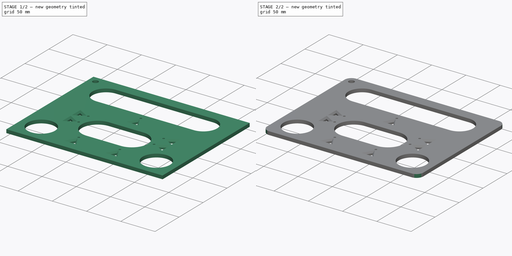
[diagram: build sequence overview — one tinted view per stage of 2, left to right]
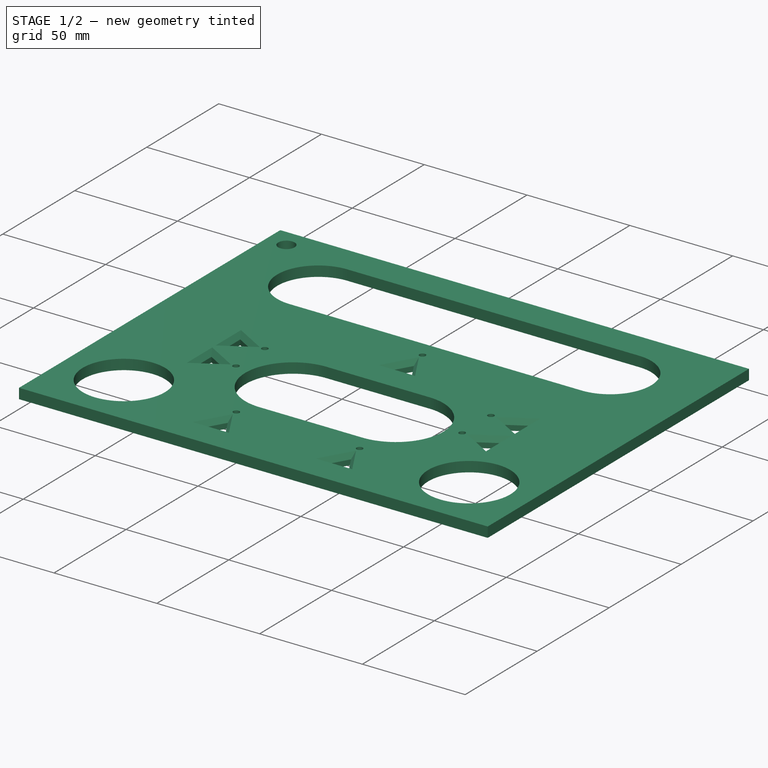
[diagram: stage 1 of 2 — iso view after this stage's code; geometry added in this stage tinted green]
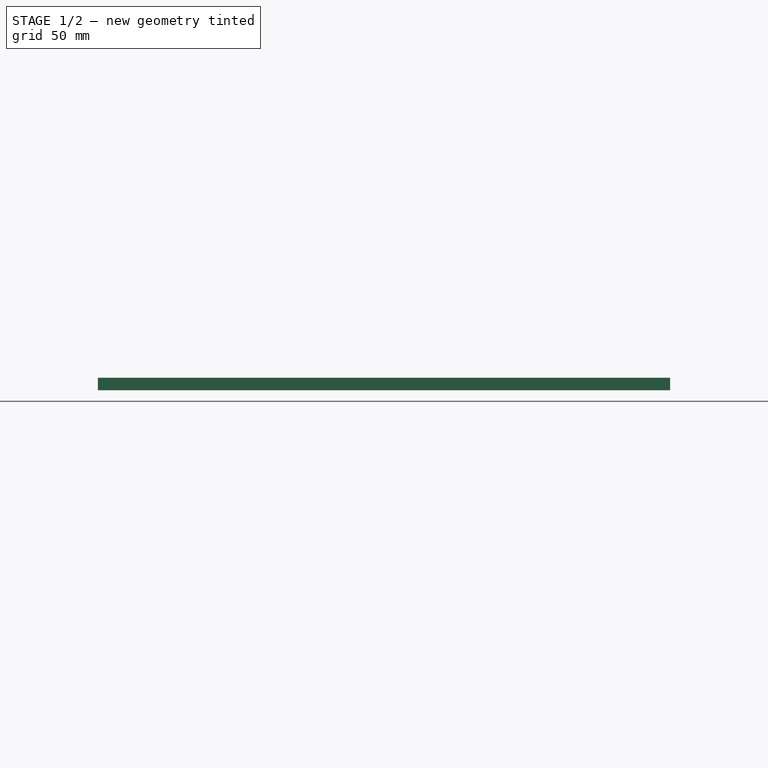
[diagram: stage 1 of 2 — front view after this stage's code; geometry added in this stage tinted green]
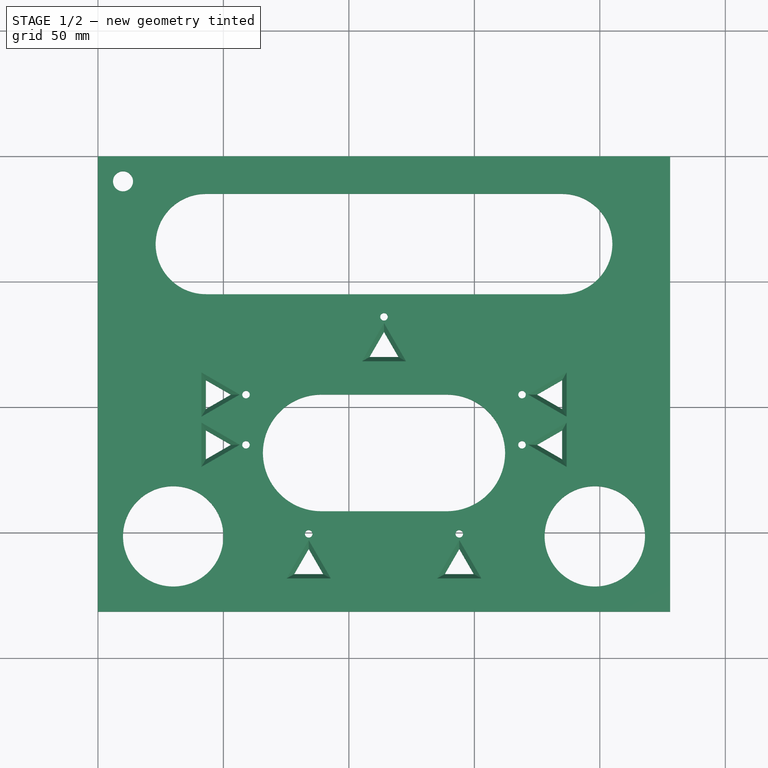
[diagram: stage 1 of 2 — top view after this stage's code; geometry added in this stage tinted green]
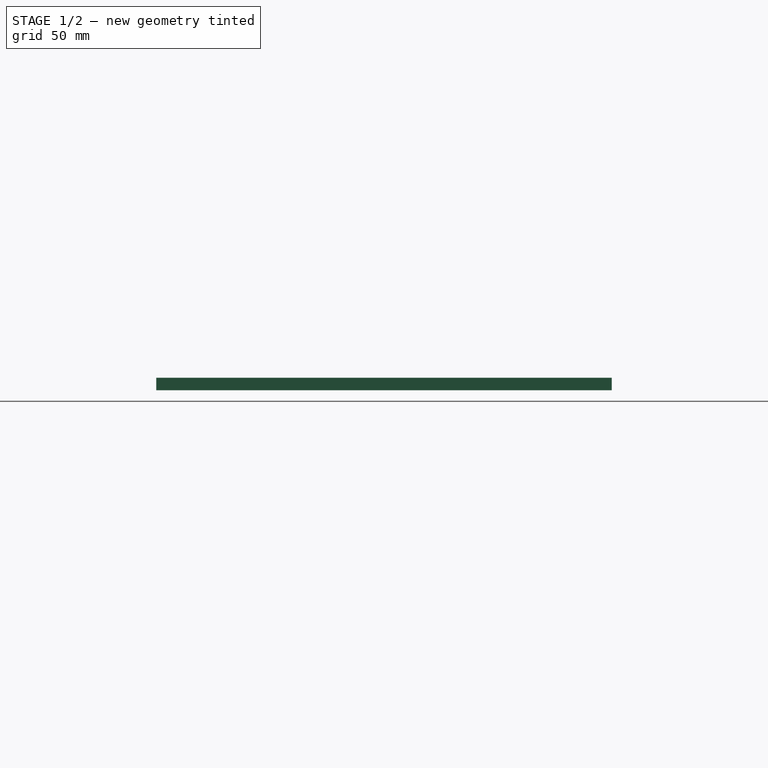
[diagram: stage 1 of 2 — right view after this stage's code; geometry added in this stage tinted green]
FCSTD DOCUMENT  (FreeCAD 0.19R24366 (Git))
Label: Small enclosure, bracket over radio and PSU
License: All rights reserved
LicenseURL: http://en.wikipedia.org/wiki/All_rights_reserved
objects: Sketcher::SketchObject×1, PartDesign::Pad×1, Part::Part2DObjectPython×1, PartDesign::Chamfer×1, PartDesign::Fillet×1, PartDesign::Body×1, TechDraw::DrawSVGTemplate×1, TechDraw::DrawViewPart×1, TechDraw::DrawPage×1
note: 9 computed .brp shape members not serialized (recipe doc carries the construction recipe); baked Part::Feature solids carry a one-line shape summary decoded from their .brp

FEATURE [Sketcher::SketchObject] Sketch
  FullyConstrained = true
  MapMode = 5
  Support = -> [XY_Plane]
  sketch-geometry (46):
    g0: LineSegment StartX=0 StartY=0 StartZ=0 EndX=228 EndY=0 EndZ=0
    g1: LineSegment StartX=228 StartY=0 StartZ=0 EndX=228 EndY=-181.5 EndZ=0
    g2: LineSegment StartX=149.774 StartY=-166.5 StartZ=0 EndX=144 EndY=-156.5 EndZ=0
    g3: LineSegment StartX=144 StartY=-156.5 StartZ=0 EndX=138.226 EndY=-166.5 EndZ=0
    g4: LineSegment StartX=89.7735 StartY=-166.5 StartZ=0 EndX=84 EndY=-156.5 EndZ=0
    g5: LineSegment StartX=84 StartY=-156.5 StartZ=0 EndX=78.2265 EndY=-166.5 EndZ=0
    g6: LineSegment StartX=0 StartY=-181.5 StartZ=0 EndX=0 EndY=0 EndZ=0
    g7: LineSegment StartX=114 StartY=-70 StartZ=0 EndX=119.774 EndY=-80 EndZ=0
    g8: LineSegment StartX=119.774 StartY=-80 StartZ=0 EndX=108.226 EndY=-80 EndZ=0
    g9: LineSegment StartX=108.226 StartY=-80 StartZ=0 EndX=114 EndY=-70 EndZ=0
    g10: LineSegment StartX=114 StartY=-70 StartZ=0 EndX=114 EndY=-166.5 EndZ=0
    g11: LineSegment StartX=78.2265 StartY=-166.5 StartZ=0 EndX=89.7735 EndY=-166.5 EndZ=0
    g12: LineSegment StartX=138.226 StartY=-166.5 StartZ=0 EndX=149.774 EndY=-166.5 EndZ=0
    g13: LineSegment StartX=0 StartY=-181.5 StartZ=0 EndX=228 EndY=-181.5 EndZ=0
    g14: LineSegment StartX=53 StartY=-105 StartZ=0 EndX=175 EndY=-105 EndZ=0
    g15: GeomPoint X=114 Y=-105 Z=0
    g16: LineSegment StartX=185 StartY=-89.2265 StartZ=0 EndX=175 EndY=-95 EndZ=0
    g17: LineSegment StartX=175 StartY=-95 StartZ=0 EndX=185 EndY=-100.774 EndZ=0
    g18: LineSegment StartX=185 StartY=-100.774 StartZ=0 EndX=185 EndY=-89.2265 EndZ=0
    g19: LineSegment StartX=185 StartY=-109.226 StartZ=0 EndX=175 EndY=-115 EndZ=0
    g20: LineSegment StartX=175 StartY=-115 StartZ=0 EndX=185 EndY=-120.774 EndZ=0
    g21: LineSegment StartX=185 StartY=-120.774 StartZ=0 EndX=185 EndY=-109.226 EndZ=0
    g22: LineSegment StartX=43 StartY=-100.774 StartZ=0 EndX=53 EndY=-95 EndZ=0
    g23: LineSegment StartX=53 StartY=-95 StartZ=0 EndX=43 EndY=-89.2265 EndZ=0
    g24: LineSegment StartX=43 StartY=-89.2265 StartZ=0 EndX=43 EndY=-100.774 EndZ=0
    g25: LineSegment StartX=43 StartY=-120.774 StartZ=0 EndX=53 EndY=-115 EndZ=0
    g26: LineSegment StartX=53 StartY=-115 StartZ=0 EndX=43 EndY=-109.226 EndZ=0
    g27: LineSegment StartX=43 StartY=-109.226 StartZ=0 EndX=43 EndY=-120.774 EndZ=0
    g28: ArcOfCircle CenterX=43 CenterY=-35 CenterZ=0 NormalX=0 NormalY=0 NormalZ=1 AngleXU=0 Radius=20 StartAngle=1.5708 EndAngle=4.71239
    g29: ArcOfCircle CenterX=185 CenterY=-35 CenterZ=0 NormalX=0 NormalY=0 NormalZ=1 AngleXU=0 Radius=20 StartAngle=4.71239 EndAngle=7.85398
    g30: LineSegment StartX=43 StartY=-55 StartZ=0 EndX=185 EndY=-55 EndZ=0
    g31: LineSegment StartX=43 StartY=-15 StartZ=0 EndX=185 EndY=-15 EndZ=0
    g32: ArcOfCircle CenterX=89 CenterY=-118.25 CenterZ=0 NormalX=0 NormalY=0 NormalZ=1 AngleXU=0 Radius=23.25 StartAngle=1.5708 EndAngle=4.71239
    g33: ArcOfCircle CenterX=139 CenterY=-118.25 CenterZ=0 NormalX=0 NormalY=0 NormalZ=1 AngleXU=0 Radius=23.25 StartAngle=4.71239 EndAngle=7.85398
    g34: LineSegment StartX=89 StartY=-141.5 StartZ=0 EndX=139 EndY=-141.5 EndZ=0
    g35: LineSegment StartX=89 StartY=-95 StartZ=0 EndX=139 EndY=-95 EndZ=0
    g36: Circle CenterX=59 CenterY=-95 CenterZ=0 NormalX=0 NormalY=0 NormalZ=1 AngleXU=0 Radius=1.5
    g37: Circle CenterX=59 CenterY=-115 CenterZ=0 NormalX=0 NormalY=0 NormalZ=1 AngleXU=0 Radius=1.5
    g38: Circle CenterX=169 CenterY=-95 CenterZ=0 NormalX=0 NormalY=0 NormalZ=1 AngleXU=0 Radius=1.5
    g39: Circle CenterX=169 CenterY=-115 CenterZ=0 NormalX=0 NormalY=0 NormalZ=1 AngleXU=0 Radius=1.5
    g40: Circle CenterX=84 CenterY=-150.5 CenterZ=0 NormalX=0 NormalY=0 NormalZ=1 AngleXU=0 Radius=1.5
    g41: Circle CenterX=144 CenterY=-150.5 CenterZ=0 NormalX=0 NormalY=0 NormalZ=1 AngleXU=0 Radius=1.5
    g42: Circle CenterX=114 CenterY=-64 CenterZ=0 NormalX=0 NormalY=0 NormalZ=1 AngleXU=0 Radius=1.5
    g43: Circle CenterX=10 CenterY=-10 CenterZ=0 NormalX=0 NormalY=0 NormalZ=1 AngleXU=0 Radius=4
    g44: Circle CenterX=30 CenterY=-151.5 CenterZ=0 NormalX=0 NormalY=0 NormalZ=1 AngleXU=0 Radius=20
    g45: Circle CenterX=198 CenterY=-151.5 CenterZ=0 NormalX=0 NormalY=0 NormalZ=1 AngleXU=0 Radius=20
  constraints (131):
    c: PointOnObject(g0,g-1)
    c: Coincident(g0,g1)
    c: Vertical(g1)
    c: Coincident(g2,g3)
    c: Coincident(g4,g5)
    c: PointOnObject(g6,g-2)
    c: Horizontal(g5,g4)
    c: Horizontal(g4,g2)
    c: Horizontal(g4,g2)
    c: DistanceX(g4,g2) = 60
    c: Angle(g5,g4) = 1.0472
    c: Angle(g3,g2) = 1.0472
    c: Equal(g5,g4)
    c: Equal(g4,g3)
    c: Coincident(g7,g8)
    c: Horizontal(g8)
    c: Coincident(g8,g9)
    c: Coincident(g9,g7)
    c: Angle(g9,g7) = 1.0472
    c: DistanceY(g2,g7) = 86.5
    c: Coincident(g10,g7)
    c: Vertical(g10)
    c: Symmetric(g3,g4,g10)
    c: Equal(g9,g7)
    c: DistanceX(g0,g7) = 114
    c: Coincident(g0,g6)
    c: Coincident(g0,g-1)
    c: DistanceY(g7,g0) = 70
    c: Coincident(g11,g5)
    c: Coincident(g11,g4)
    c: Coincident(g12,g3)
    c: Coincident(g12,g2)
    c: Horizontal(g12)
    c: DistanceY(g2,g2) = 10
    c: Coincident(g13,g6)
    c: Coincident(g13,g1)
    c: Horizontal(g13)
    c: Horizontal(g14)
    c: PointOnObject(g15,g10)
    c: DistanceY(g15,g7) = 35
    c: Symmetric(g14,g14,g15)
    c: Distance(g14) = 122
    c: Coincident(g16,g17)
    c: Angle(g17,g16) = 1.0472
    c: Coincident(g18,g17)
    c: Coincident(g18,g16)
    c: Equal(g2,g16) = 15
    c: Equal(g17,g16)
    c: Vertical(g16,g14)
    c: DistanceY(g14,g16) = 10
    c: Vertical(g18)
    c: Coincident(g19,g20)
    c: Angle(g20,g19) = 1.0472
    c: Coincident(g21,g20)
    c: Coincident(g21,g19)
    c: Equal(g20,g19)
    c: Vertical(g21)
    c: Vertical(g16,g19)
    c: DistanceY(g19,g16) = 20
    c: Vertical(g17,g19)
    c: Coincident(g22,g23)
    c: Angle(g23,g22) = 1.0472
    c: Equal(g23,g22)
    c: Coincident(g24,g23)
    c: Coincident(g24,g22)
    c: Vertical(g24)
    c: Vertical(g22,g14)
    c: Horizontal(g16,g22)
    c: Coincident(g25,g26)
    c: Angle(g26,g25) = 1.0472
    c: Equal(g26,g25)
    c: Coincident(g27,g26)
    c: Coincident(g27,g25)
    c: Vertical(g27)
    c: Vertical(g22,g25)
    c: Horizontal(g19,g25)
    c: Equal(g16,g23)
    c: Equal(g26,g23)
    c: DistanceX(g7,g0) = 114
    c: DistanceY(g1,g2) = 15
    c: Tangent(g28,g31) = 1.5708
    c: Tangent(g28,g30) = -1.5708
    c: Tangent(g30,g29) = -1.5708
    c: Tangent(g31,g29) = 1.5708
    c: Horizontal(g30)
    c: Equal(g28,g29)
    c: Vertical(g28,g23)
    c: Vertical(g29,g16)
    c: DistanceY(g7,g29) = 15
    c: DistanceY(g29,g0) = 15
    c: Tangent(g32,g35) = 1.5708
    c: Tangent(g32,g34) = -1.5708
    c: Tangent(g34,g33) = -1.5708
    c: Tangent(g35,g33) = 1.5708
    c: Horizontal(g34)
    c: Equal(g32,g33)
    c: DistanceY(g4,g32) = 15
    c: DistanceY(g32,g8) = 15
    c: Radius(g36) = 1.5
    c: DistanceX(g22,g36) = 6
    c: Horizontal(g36,g22)
    c: Equal(g36,g37) = 2
    c: Vertical(g36,g37)
    c: Horizontal(g37,g25)
    c: Equal(g36,g38) = 2
    c: DistanceX(g38,g16) = 6
    c: Horizontal(g38,g16)
    c: Vertical(g39,g38)
    c: Horizontal(g39,g19)
    c: Equal(g38,g39)
    c: Equal(g40,g41)
    c: Equal(g41,g42)
    c: Vertical(g42,g7)
    c: Vertical(g40,g4)
    c: Vertical(g41,g2)
    c: Horizontal(g41,g40)
    c: DistanceY(g4,g40) = 6
    c: DistanceY(g7,g42) = 6
    c: Equal(g36,g40)
    c: Radius(g43) = 4
    c: DistanceX(g0,g43) = 10
    c: DistanceY(g43,g0) = 10
    c: Radius(g45) = 20
    c: Equal(g45,g44)
    c: Horizontal(g44,g45)
    c: DistanceY(g1,g45) = 30
    c: DistanceX(g45,g1) = 30
    c: DistanceX(g6,g44) = 30
    c: Equal(g8,g12)
    c: DistanceX(g32,g15) = 25
    c: DistanceX(g15,g33) = 25
FEATURE [PartDesign::Pad] Pad
  Direction = (1,1,1)
  Length = 5
  Length2 = 100
  Profile = -> Sketch
  Type = 0
FEATURE [Part::Part2DObjectPython] ShapeString  # Draft 2D object (typed FeaturePython)
  FontFile = <path>
  Placement = pos=(46,-13,5) rot=(0,0,1;0rad)
  Size = 10
  String = TOP
  Tracking = 0
FEATURE [PartDesign::Chamfer] Chamfer
  Angle = 35
  Base = -> Pad [Edge67,Edge69,Edge64,Edge58,Edge60,Edge55,Edge91,Edge96,Edge94,Edge82,Edge87,Edge85,Edge78,Edge73,Edge76,Edge46,Edge49,Edge51,Edge105,Edge100,Edge103]
  BaseFeature = -> Pad
  ChamferType = 2
  FlipDirection = false
  Size = 2.5
  Size2 = 1
  SupportTransform = false
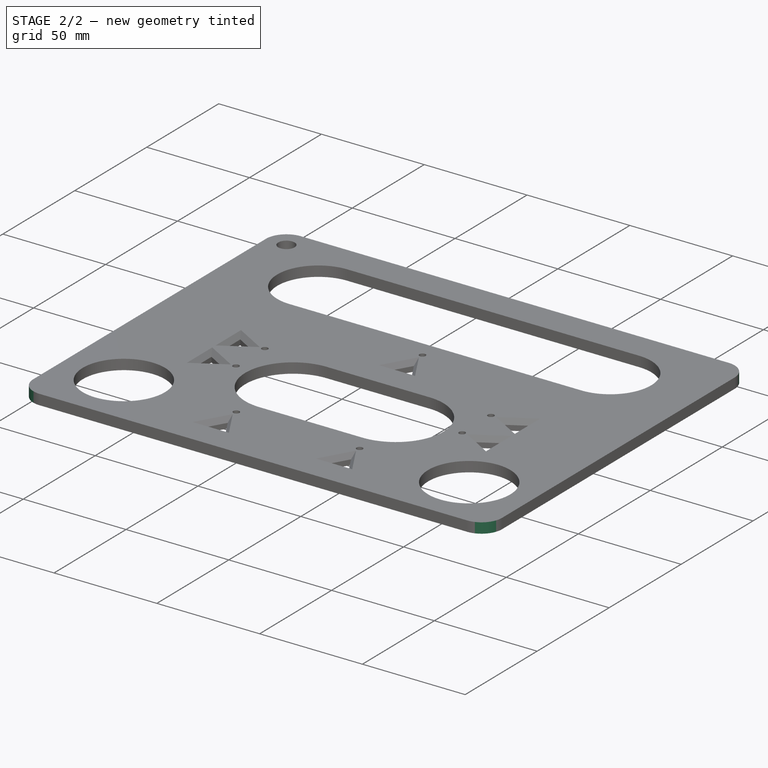
[diagram: stage 2 of 2 — iso view after this stage's code; geometry added in this stage tinted green]
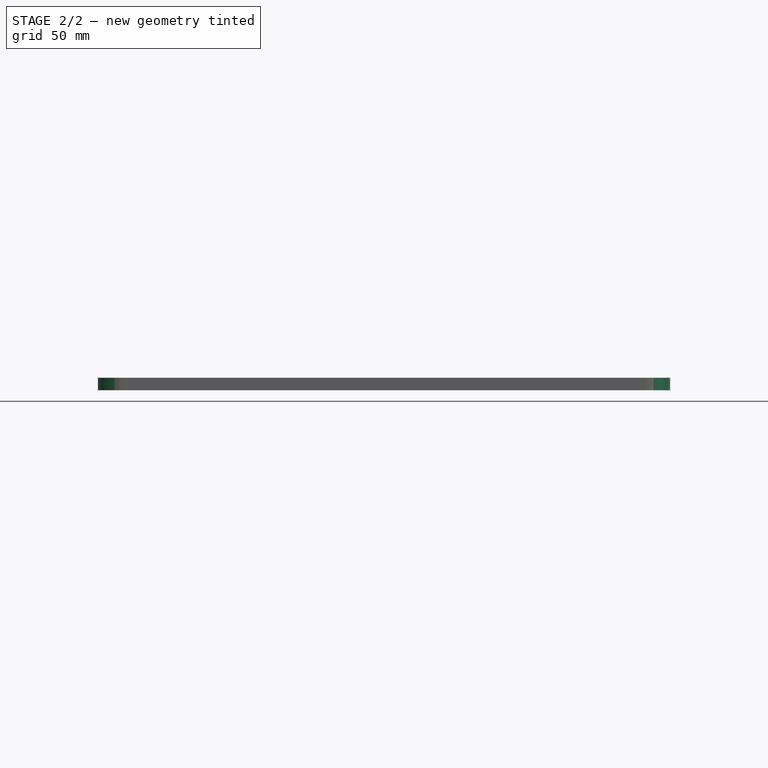
[diagram: stage 2 of 2 — front view after this stage's code; geometry added in this stage tinted green]
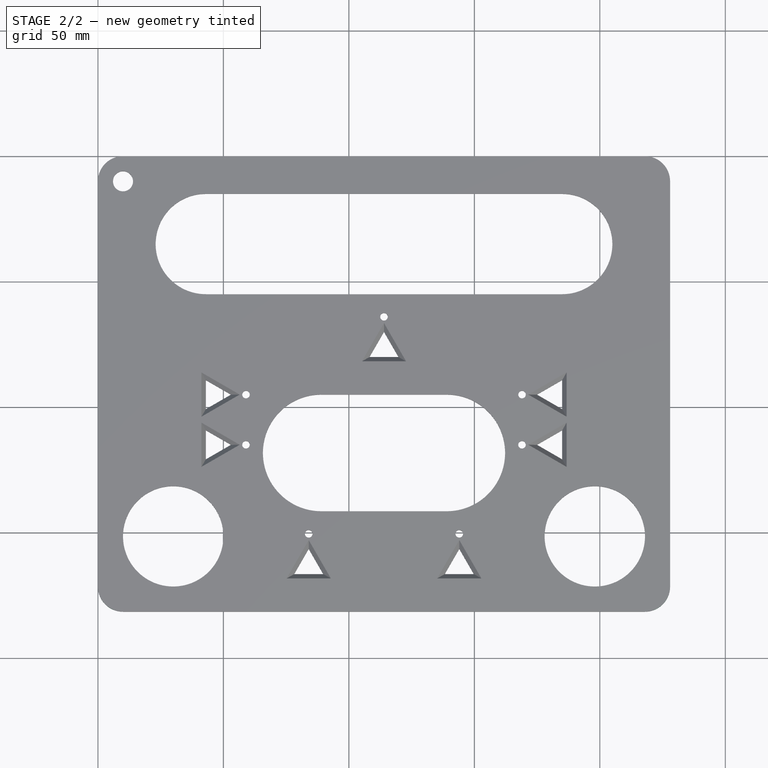
[diagram: stage 2 of 2 — top view after this stage's code; geometry added in this stage tinted green]
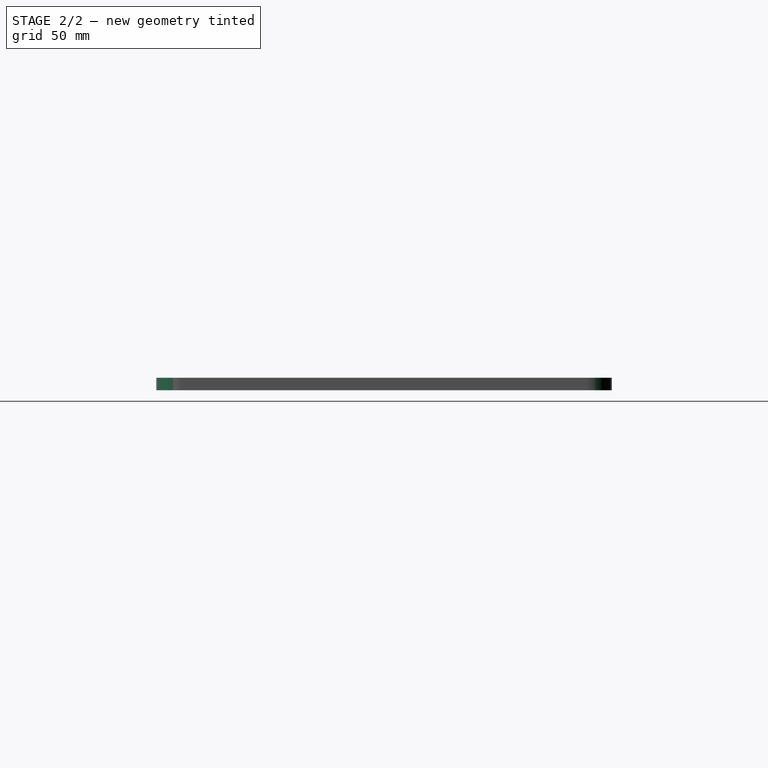
[diagram: stage 2 of 2 — right view after this stage's code; geometry added in this stage tinted green]
FEATURE [PartDesign::Fillet] Fillet
  Base = -> Chamfer [Edge97,Edge98,Edge96,Edge99]
  BaseFeature = -> Chamfer
  Radius = 10
  SupportTransform = false
FEATURE [PartDesign::Body] Body
  Group = -> [Sketch,Pad,Chamfer,Fillet]
  Origin = -> Origin
  Tip = -> Fillet
FEATURE [TechDraw::DrawSVGTemplate] Template
  EditableTexts = Designed_by_Name=Designed by Name; Drawing_number=Drawing number; FC-Date=Date; FC-SC=Scale; FC-SH=Sheet; FC-Title=Title; Subtitle=Subtitle; Weight=Weight
  Height = 210
  Orientation = 1
  Width = 297
FEATURE [TechDraw::DrawViewPart] View
  CoarseView = false
  Direction = (0,0,1)
  Focus = 100
  HardHidden = false
  IsoCount = 0
  IsoHidden = false
  IsoVisible = false
  LockPosition = false
  Perspective = false
  Rotation = 0
  ScaleType = 0
  SeamHidden = false
  SeamVisible = true
  SmoothHidden = false
  SmoothVisible = true
  Source = -> [Sketch]
  X = 148.5
  XDirection = (1,0,0)
  Y = 105
FEATURE [TechDraw::DrawPage] Page
  KeepUpdated = true
  NextBalloonIndex = 1
  ProjectionType = 0
  Template = -> Template
  Views = -> [View]
note: 1 file-system path scrubbed to <path> (originals preserved in the JSON sidecar)
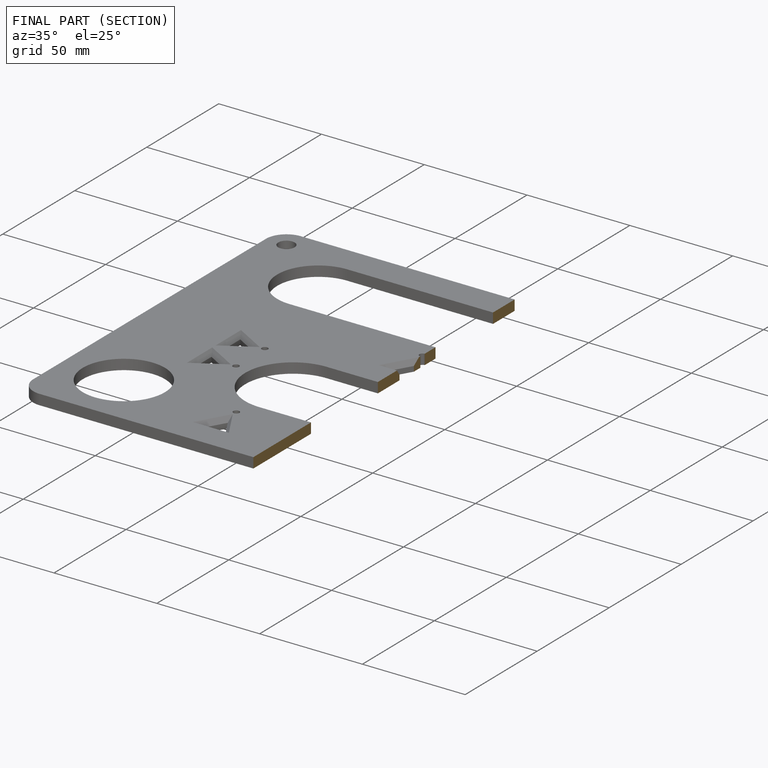
[diagram: finished part — half-section view (interior)]
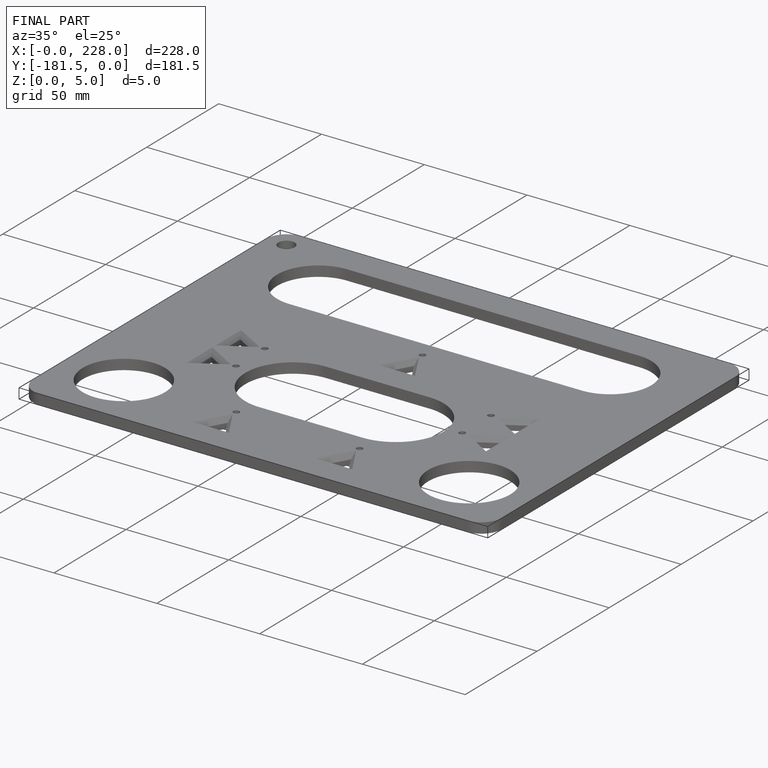
[diagram: finished part — iso view with bounding-box wireframe]
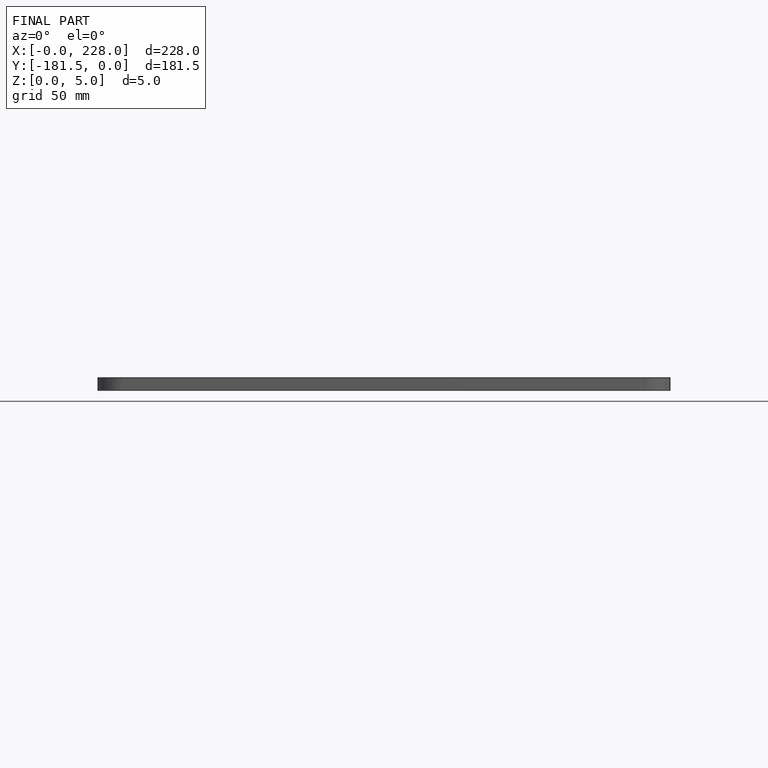
[diagram: finished part — front view with bounding-box wireframe]
